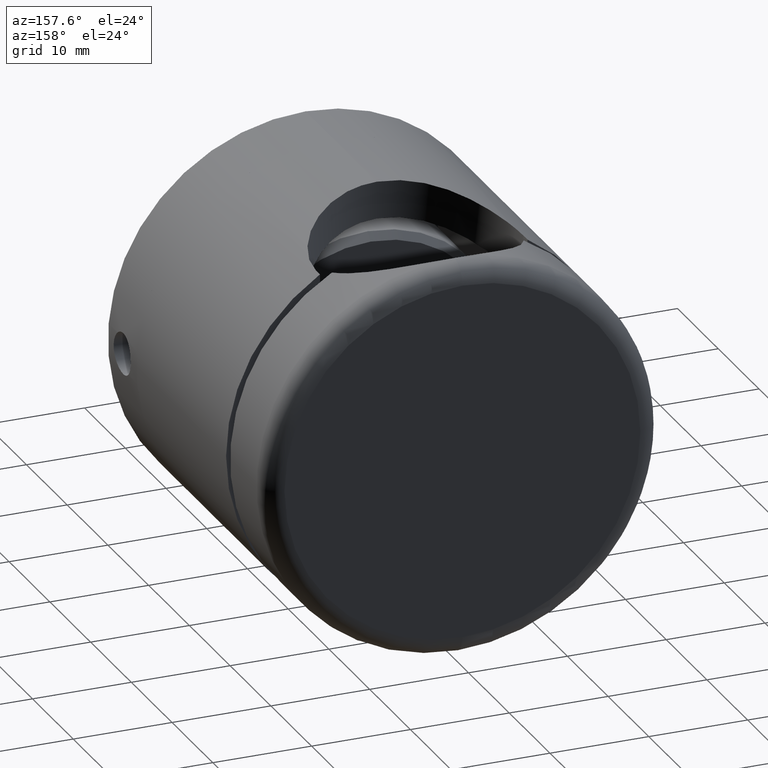
[diagram: clean part render]
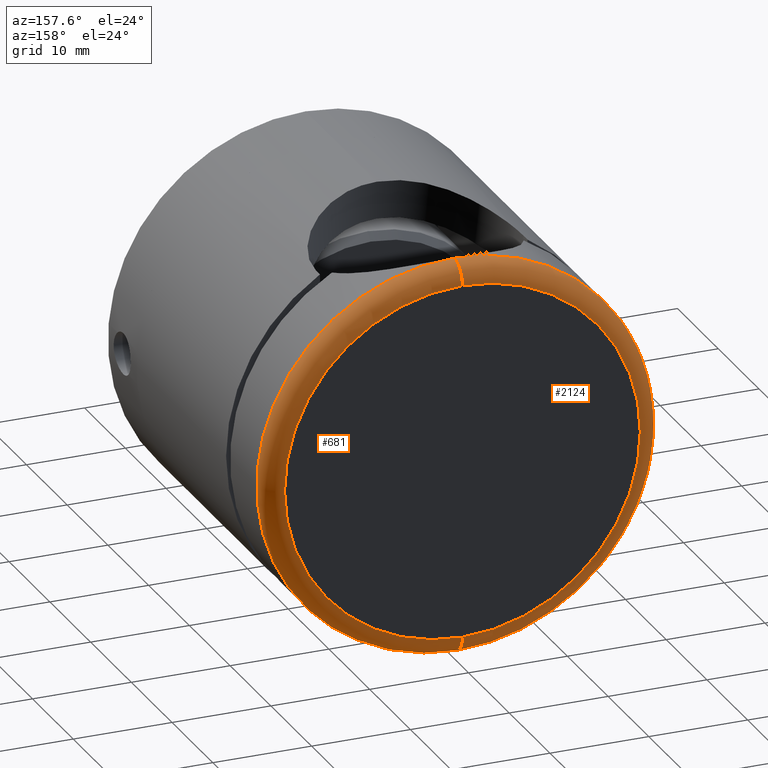
[diagram: same view with one multi-face feature highlighted, each face labeled with its STEP entity id]
A machine part, auxiliary view. The highlighted faces form ONE feature: a constant-radius fillet chain: 2 tangent blend faces with common blend radius 2 mm. The faces share edges in the B-rep.
Their STEP definitions:
[1] entity #2124 (Torus):
#211 = CIRCLE ( 'NONE', #5389, 20.00000000000000000 ) ;
#414 = DIRECTION ( 'NONE',  ( 0.000000000000000000, 0.000000000000000000, -1.000000000000000000 ) ) ;
#516 = CARTESIAN_POINT ( 'NONE',  ( 0.000000000000000000, 3.499999999999999556, 0.000000000000000000 ) ) ;
#944 = ORIENTED_EDGE ( 'NONE', *, *, #7554, .F. ) ;
#1773 = CIRCLE ( 'NONE', #7353, 2.000000000000001776 ) ;
#2124 = ADVANCED_FACE ( 'NONE', ( #4717 ), #14921, .T. ) ;
#2260 = ORIENTED_EDGE ( 'NONE', *, *, #12121, .F. ) ;
#2855 = CARTESIAN_POINT ( 'NONE',  ( 0.000000000000000000, 1.500000000000000000, 0.000000000000000000 ) ) ;
#2929 = DIRECTION ( 'NONE',  ( -1.224646799147351482E-16, 0.000000000000000000, -1.000000000000000000 ) ) ;
#3007 = DIRECTION ( 'NONE',  ( -1.000000000000000000, -0.000000000000000000, -0.000000000000000000 ) ) ;
#3505 = EDGE_LOOP ( 'NONE', ( #2260, #16166, #14400, #944 ) ) ;
#4336 = CARTESIAN_POINT ( 'NONE',  ( 1.024463996440491722E-19, 3.500000000000000444, -20.00000000000000000 ) ) ;
#4717 = FACE_OUTER_BOUND ( 'NONE', #3505, .T. ) ;
#5190 = DIRECTION ( 'NONE',  ( 0.000000000000000000, 0.000000000000000000, -1.000000000000000000 ) ) ;
#5389 = AXIS2_PLACEMENT_3D ( 'NONE', #15320, #10135, #5190 ) ;
#5584 = CARTESIAN_POINT ( 'NONE',  ( 2.204364238465235822E-15, 3.499999999999999556, 18.00000000000000355 ) ) ;
#5831 = VERTEX_POINT ( 'NONE', #6346 ) ;
#6243 = AXIS2_PLACEMENT_3D ( 'NONE', #516, #14471, #414 ) ;
#6346 = CARTESIAN_POINT ( 'NONE',  ( 2.326828918379971365E-15, 1.500000000000000000, 18.00000000000000355 ) ) ;
#6846 = VERTEX_POINT ( 'NONE', #13931 ) ;
#6870 = AXIS2_PLACEMENT_3D ( 'NONE', #2855, #11727, #11791 ) ;
#7353 = AXIS2_PLACEMENT_3D ( 'NONE', #11993, #3007, #11933 ) ;
#7554 = EDGE_CURVE ( 'NONE', #5831, #9567, #11058, .T. ) ;
#7654 = VERTEX_POINT ( 'NONE', #4336 ) ;
#8152 = EDGE_CURVE ( 'NONE', #7654, #6846, #211, .T. ) ;
#9164 = CARTESIAN_POINT ( 'NONE',  ( 0.000000000000000000, 1.500000000000000000, -18.00000000000000355 ) ) ;
#9567 = VERTEX_POINT ( 'NONE', #9164 ) ;
#10135 = DIRECTION ( 'NONE',  ( -0.000000000000000000, 1.000000000000000000, -0.000000000000000000 ) ) ;
#10588 = AXIS2_PLACEMENT_3D ( 'NONE', #5584, #15831, #2929 ) ;
#11058 = CIRCLE ( 'NONE', #6870, 18.00000000000000355 ) ;
#11727 = DIRECTION ( 'NONE',  ( 0.000000000000000000, -1.000000000000000000, 0.000000000000000000 ) ) ;
#11729 = EDGE_CURVE ( 'NONE', #7654, #9567, #1773, .T. ) ;
#11791 = DIRECTION ( 'NONE',  ( 0.000000000000000000, 0.000000000000000000, -1.000000000000000000 ) ) ;
#11933 = DIRECTION ( 'NONE',  ( 0.000000000000000000, 0.000000000000000000, 1.000000000000000000 ) ) ;
#11993 = CARTESIAN_POINT ( 'NONE',  ( 0.000000000000000000, 3.499999999999999556, -18.00000000000000355 ) ) ;
#12121 = EDGE_CURVE ( 'NONE', #6846, #5831, #13412, .T. ) ;
#13412 = CIRCLE ( 'NONE', #10588, 2.000000000000001776 ) ;
#13931 = CARTESIAN_POINT ( 'NONE',  ( -1.024463996440491722E-19, 3.500000000000000444, 20.00000000000000000 ) ) ;
#14400 = ORIENTED_EDGE ( 'NONE', *, *, #11729, .T. ) ;
#14471 = DIRECTION ( 'NONE',  ( 0.000000000000000000, -1.000000000000000000, 0.000000000000000000 ) ) ;
#14921 = TOROIDAL_SURFACE ( 'NONE', #6243, 18.00000000000000355, 2.000000000000000000 ) ;
#15320 = CARTESIAN_POINT ( 'NONE',  ( 0.000000000000000000, 3.499999999999999556, 0.000000000000000000 ) ) ;
#15831 = DIRECTION ( 'NONE',  ( 1.000000000000000000, 0.000000000000000000, -1.224646799147353207E-16 ) ) ;
#16166 = ORIENTED_EDGE ( 'NONE', *, *, #8152, .F. ) ;
[2] entity #681 (Torus):
#446 = AXIS2_PLACEMENT_3D ( 'NONE', #8010, #14387, #5477 ) ;
#681 = ADVANCED_FACE ( 'NONE', ( #7141 ), #8569, .T. ) ;
#1444 = CIRCLE ( 'NONE', #446, 20.00000000000000000 ) ;
#1773 = CIRCLE ( 'NONE', #7353, 2.000000000000001776 ) ;
#2210 = EDGE_CURVE ( 'NONE', #9567, #5831, #4138, .T. ) ;
#2787 = ORIENTED_EDGE ( 'NONE', *, *, #12121, .T. ) ;
#2929 = DIRECTION ( 'NONE',  ( -1.224646799147351482E-16, 0.000000000000000000, -1.000000000000000000 ) ) ;
#3007 = DIRECTION ( 'NONE',  ( -1.000000000000000000, -0.000000000000000000, -0.000000000000000000 ) ) ;
#3914 = DIRECTION ( 'NONE',  ( 0.000000000000000000, -1.000000000000000000, 0.000000000000000000 ) ) ;
#4138 = CIRCLE ( 'NONE', #13663, 18.00000000000000355 ) ;
#4315 = AXIS2_PLACEMENT_3D ( 'NONE', #5115, #3914, #6455 ) ;
#4336 = CARTESIAN_POINT ( 'NONE',  ( 1.024463996440491722E-19, 3.500000000000000444, -20.00000000000000000 ) ) ;
#5115 = CARTESIAN_POINT ( 'NONE',  ( 0.000000000000000000, 3.499999999999999556, 0.000000000000000000 ) ) ;
#5477 = DIRECTION ( 'NONE',  ( 0.000000000000000000, 0.000000000000000000, -1.000000000000000000 ) ) ;
#5584 = CARTESIAN_POINT ( 'NONE',  ( 2.204364238465235822E-15, 3.499999999999999556, 18.00000000000000355 ) ) ;
#5831 = VERTEX_POINT ( 'NONE', #6346 ) ;
#6108 = EDGE_CURVE ( 'NONE', #6846, #7654, #1444, .T. ) ;
#6273 = DIRECTION ( 'NONE',  ( 0.000000000000000000, 0.000000000000000000, -1.000000000000000000 ) ) ;
#6346 = CARTESIAN_POINT ( 'NONE',  ( 2.326828918379971365E-15, 1.500000000000000000, 18.00000000000000355 ) ) ;
#6455 = DIRECTION ( 'NONE',  ( 0.000000000000000000, 0.000000000000000000, -1.000000000000000000 ) ) ;
#6846 = VERTEX_POINT ( 'NONE', #13931 ) ;
#7141 = FACE_OUTER_BOUND ( 'NONE', #11321, .T. ) ;
#7353 = AXIS2_PLACEMENT_3D ( 'NONE', #11993, #3007, #11933 ) ;
#7654 = VERTEX_POINT ( 'NONE', #4336 ) ;
#8010 = CARTESIAN_POINT ( 'NONE',  ( 0.000000000000000000, 3.499999999999999556, 0.000000000000000000 ) ) ;
#8569 = TOROIDAL_SURFACE ( 'NONE', #4315, 18.00000000000000355, 2.000000000000000000 ) ;
#8870 = DIRECTION ( 'NONE',  ( 0.000000000000000000, -1.000000000000000000, 0.000000000000000000 ) ) ;
#9164 = CARTESIAN_POINT ( 'NONE',  ( 0.000000000000000000, 1.500000000000000000, -18.00000000000000355 ) ) ;
#9567 = VERTEX_POINT ( 'NONE', #9164 ) ;
#10535 = ORIENTED_EDGE ( 'NONE', *, *, #2210, .F. ) ;
#10588 = AXIS2_PLACEMENT_3D ( 'NONE', #5584, #15831, #2929 ) ;
#11321 = EDGE_LOOP ( 'NONE', ( #11898, #2787, #10535, #13569 ) ) ;
#11729 = EDGE_CURVE ( 'NONE', #7654, #9567, #1773, .T. ) ;
#11898 = ORIENTED_EDGE ( 'NONE', *, *, #6108, .F. ) ;
#11933 = DIRECTION ( 'NONE',  ( 0.000000000000000000, 0.000000000000000000, 1.000000000000000000 ) ) ;
#11993 = CARTESIAN_POINT ( 'NONE',  ( 0.000000000000000000, 3.499999999999999556, -18.00000000000000355 ) ) ;
#12121 = EDGE_CURVE ( 'NONE', #6846, #5831, #13412, .T. ) ;
#13412 = CIRCLE ( 'NONE', #10588, 2.000000000000001776 ) ;
#13569 = ORIENTED_EDGE ( 'NONE', *, *, #11729, .F. ) ;
#13663 = AXIS2_PLACEMENT_3D ( 'NONE', #13739, #8870, #6273 ) ;
#13739 = CARTESIAN_POINT ( 'NONE',  ( 0.000000000000000000, 1.500000000000000000, 0.000000000000000000 ) ) ;
#13931 = CARTESIAN_POINT ( 'NONE',  ( -1.024463996440491722E-19, 3.500000000000000444, 20.00000000000000000 ) ) ;
#14387 = DIRECTION ( 'NONE',  ( -0.000000000000000000, 1.000000000000000000, -0.000000000000000000 ) ) ;
#15831 = DIRECTION ( 'NONE',  ( 1.000000000000000000, 0.000000000000000000, -1.224646799147353207E-16 ) ) ;